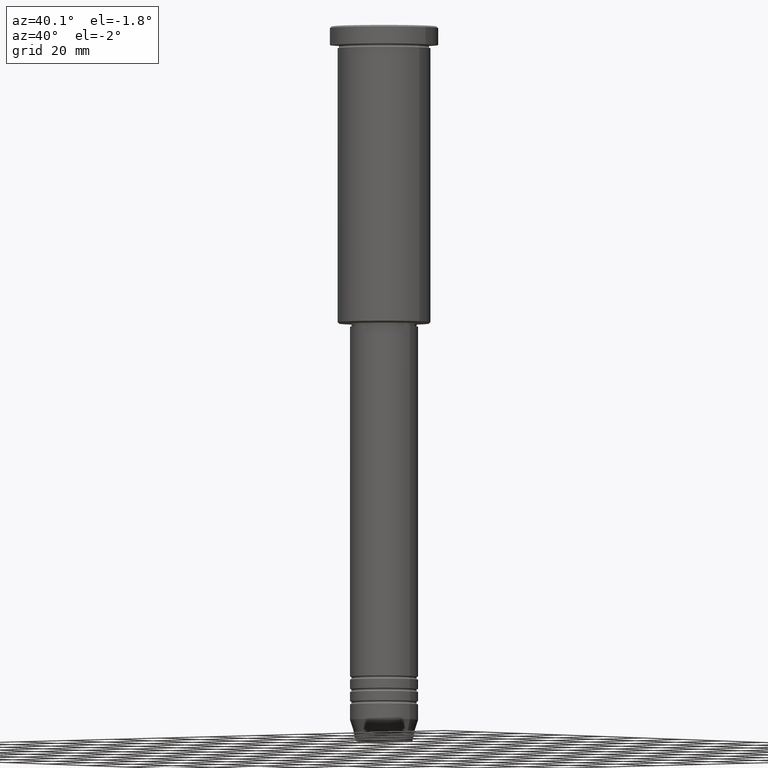
[diagram: clean part render]
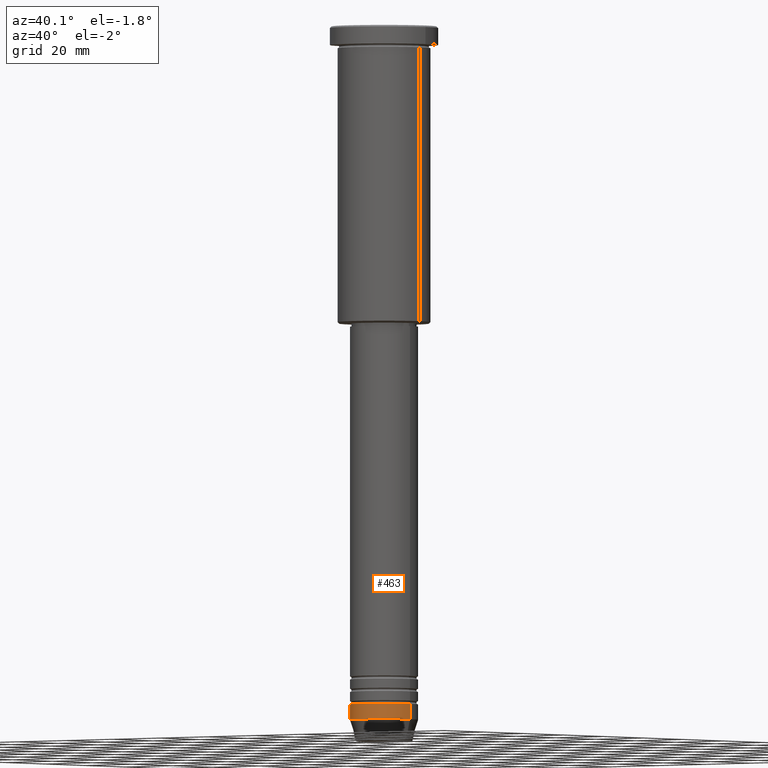
[diagram: same view with one face highlighted and labeled with its STEP entity id]
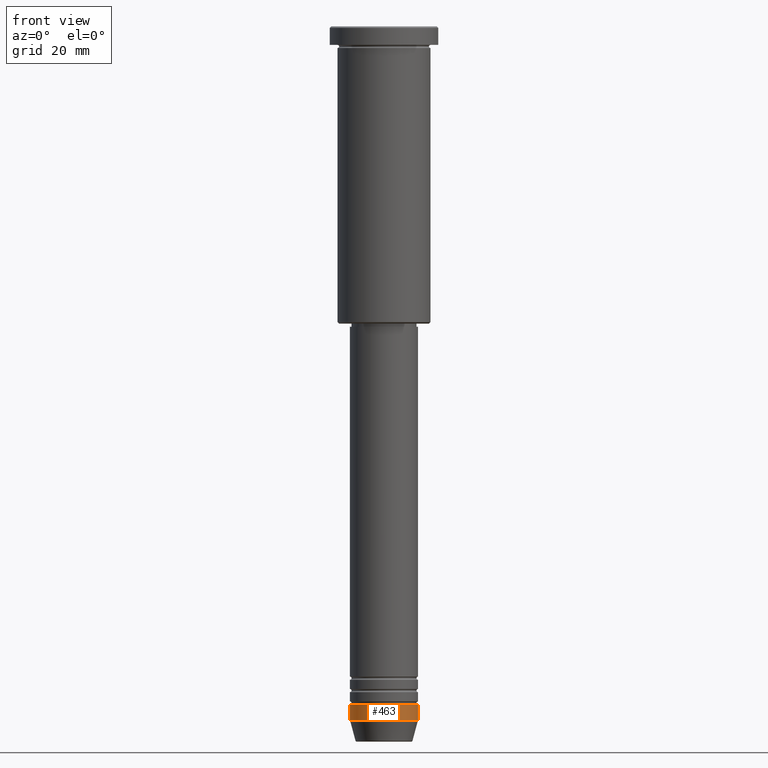
[diagram: same view with one face highlighted and labeled with its STEP entity id]
A machine part, auxiliary view. The second image highlights one B-rep face of the part: STEP entity #463.
A second angle (front view) of the same face is appended — the face is thin or edge-on in the first view.
In plain terms, the highlighted cylindrical surface (edge-blend (fillet) strip) has radius 11 mm, axis along (-0, -0, 1).
Its self-contained STEP definition (entity closure, byte-faithful):
#24 = VECTOR ( 'NONE', #188, 1000.000000000000000 ) ;
#65 = AXIS2_PLACEMENT_3D ( 'NONE', #89, #114, #834 ) ;
#89 = CARTESIAN_POINT ( 'NONE',  ( 0.000000000000000000, 0.000000000000000000, -224.0000000000000284 ) ) ;
#101 = DIRECTION ( 'NONE',  ( -0.000000000000000000, -0.000000000000000000, 1.000000000000000000 ) ) ;
#114 = DIRECTION ( 'NONE',  ( -0.000000000000000000, -0.000000000000000000, 1.000000000000000000 ) ) ;
#179 = ORIENTED_EDGE ( 'NONE', *, *, #506, .F. ) ;
#188 = DIRECTION ( 'NONE',  ( -0.000000000000000000, -0.000000000000000000, 1.000000000000000000 ) ) ;
#236 = VERTEX_POINT ( 'NONE', #652 ) ;
#248 = EDGE_CURVE ( 'NONE', #879, #836, #437, .T. ) ;
#259 = CARTESIAN_POINT ( 'NONE',  ( 11.00000000000000000, 0.000000000000000000, 0.000000000000000000 ) ) ;
#277 = EDGE_CURVE ( 'NONE', #1129, #236, #418, .T. ) ;
#418 = CIRCLE ( 'NONE', #65, 11.00000000000000000 ) ;
#425 = ORIENTED_EDGE ( 'NONE', *, *, #248, .F. ) ;
#437 = CIRCLE ( 'NONE', #846, 11.00000000000000000 ) ;
#456 = LINE ( 'NONE', #656, #24 ) ;
#463 = ADVANCED_FACE ( 'NONE', ( #624 ), #818, .T. ) ;
#506 = EDGE_CURVE ( 'NONE', #1129, #879, #456, .T. ) ;
#525 = DIRECTION ( 'NONE',  ( -0.000000000000000000, -0.000000000000000000, 1.000000000000000000 ) ) ;
#556 = DIRECTION ( 'NONE',  ( -0.000000000000000000, -0.000000000000000000, 1.000000000000000000 ) ) ;
#624 = FACE_OUTER_BOUND ( 'NONE', #1082, .T. ) ;
#635 = DIRECTION ( 'NONE',  ( 1.000000000000000000, 0.000000000000000000, 0.000000000000000000 ) ) ;
#652 = CARTESIAN_POINT ( 'NONE',  ( 11.00000000000000000, 0.000000000000000000, -224.0000000000000284 ) ) ;
#656 = CARTESIAN_POINT ( 'NONE',  ( -11.00000000000000000, 1.347111479062088405E-15, 0.000000000000000000 ) ) ;
#690 = AXIS2_PLACEMENT_3D ( 'NONE', #1093, #525, #635 ) ;
#713 = CARTESIAN_POINT ( 'NONE',  ( -11.00000000000000000, 1.347111479062088405E-15, -224.0000000000000284 ) ) ;
#717 = LINE ( 'NONE', #259, #994 ) ;
#767 = ORIENTED_EDGE ( 'NONE', *, *, #277, .T. ) ;
#773 = ORIENTED_EDGE ( 'NONE', *, *, #1153, .T. ) ;
#818 = CYLINDRICAL_SURFACE ( 'NONE', #690, 11.00000000000000000 ) ;
#834 = DIRECTION ( 'NONE',  ( 1.000000000000000000, 0.000000000000000000, 0.000000000000000000 ) ) ;
#836 = VERTEX_POINT ( 'NONE', #1103 ) ;
#846 = AXIS2_PLACEMENT_3D ( 'NONE', #1008, #556, #918 ) ;
#879 = VERTEX_POINT ( 'NONE', #1080 ) ;
#918 = DIRECTION ( 'NONE',  ( 1.000000000000000000, 0.000000000000000000, 0.000000000000000000 ) ) ;
#994 = VECTOR ( 'NONE', #101, 1000.000000000000000 ) ;
#1008 = CARTESIAN_POINT ( 'NONE',  ( 0.000000000000000000, 0.000000000000000000, -219.0000000000000568 ) ) ;
#1080 = CARTESIAN_POINT ( 'NONE',  ( -11.00000000000000000, 1.347111479062088405E-15, -219.0000000000000568 ) ) ;
#1082 = EDGE_LOOP ( 'NONE', ( #179, #767, #773, #425 ) ) ;
#1093 = CARTESIAN_POINT ( 'NONE',  ( 0.000000000000000000, 0.000000000000000000, 0.000000000000000000 ) ) ;
#1103 = CARTESIAN_POINT ( 'NONE',  ( 11.00000000000000000, 0.000000000000000000, -219.0000000000000568 ) ) ;
#1129 = VERTEX_POINT ( 'NONE', #713 ) ;
#1153 = EDGE_CURVE ( 'NONE', #236, #836, #717, .T. ) ;